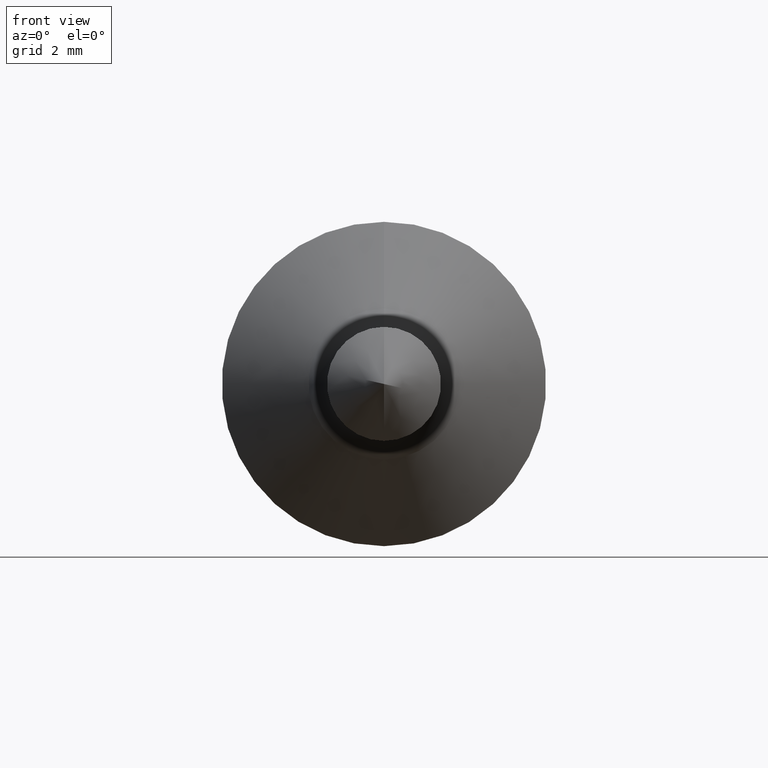
[diagram: clean part render]
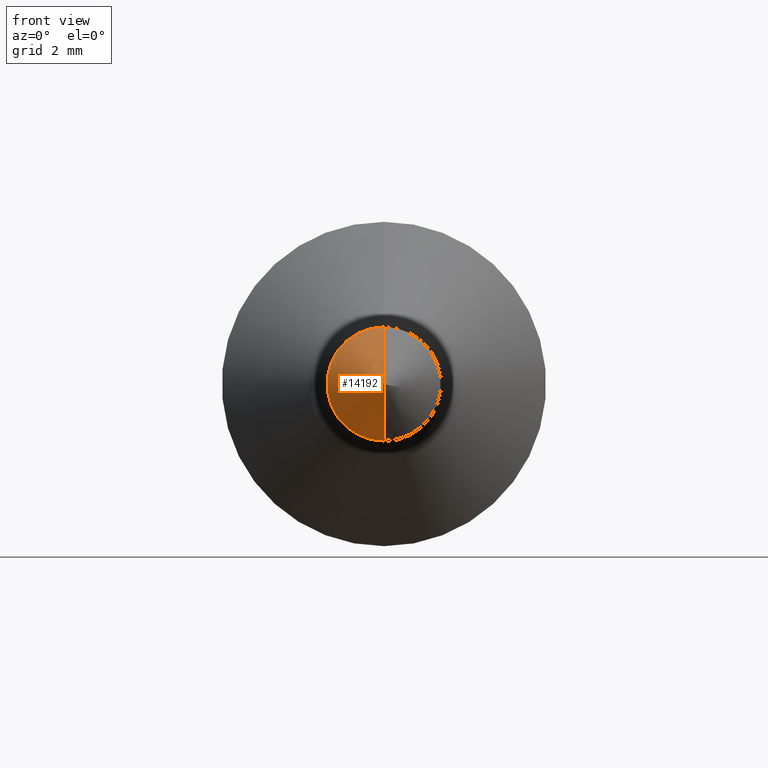
[diagram: same view with one face highlighted and labeled with its STEP entity id]
A machine part, front view. The second image highlights one B-rep face of the part: STEP entity #14192.
In plain terms, the highlighted conical surface has half-angle 43.531 deg.
Its self-contained STEP definition (entity closure, byte-faithful):
#120 = CARTESIAN_POINT ( 'NONE',  ( 2.326828918379972844E-16, 2.000000000000000000, -1.900000000000001688 ) ) ;
#1034 = VERTEX_POINT ( 'NONE', #120 ) ;
#1284 = EDGE_LOOP ( 'NONE', ( #3829, #6479, #3590 ) ) ;
#1417 = LINE ( 'NONE', #12757, #15106 ) ;
#1760 = CARTESIAN_POINT ( 'NONE',  ( 0.000000000000000000, 0.000000000000000000, 0.000000000000000000 ) ) ;
#2485 = CARTESIAN_POINT ( 'NONE',  ( 0.000000000000000000, 0.000000000000000000, 0.000000000000000000 ) ) ;
#3590 = ORIENTED_EDGE ( 'NONE', *, *, #16693, .T. ) ;
#3829 = ORIENTED_EDGE ( 'NONE', *, *, #7705, .F. ) ;
#4520 = LINE ( 'NONE', #2485, #16525 ) ;
#4835 = DIRECTION ( 'NONE',  ( 0.000000000000000000, 0.7249994335944133228, 0.6887494619146934394 ) ) ;
#5098 = DIRECTION ( 'NONE',  ( 8.434748239482910320E-17, 0.7249994335944133228, -0.6887494619146934394 ) ) ;
#5124 = VERTEX_POINT ( 'NONE', #1760 ) ;
#5169 = FACE_OUTER_BOUND ( 'NONE', #1284, .T. ) ;
#5443 = CARTESIAN_POINT ( 'NONE',  ( 0.000000000000000000, 2.000000000000000000, 0.000000000000000000 ) ) ;
#5745 = CARTESIAN_POINT ( 'NONE',  ( 0.000000000000000000, 1000.000000000000000, 0.000000000000000000 ) ) ;
#6479 = ORIENTED_EDGE ( 'NONE', *, *, #17180, .T. ) ;
#7705 = EDGE_CURVE ( 'NONE', #5124, #1034, #4520, .T. ) ;
#8473 = CIRCLE ( 'NONE', #12307, 1.900000000000001910 ) ;
#11123 = DIRECTION ( 'NONE',  ( 0.000000000000000000, 1.000000000000000000, 0.000000000000000000 ) ) ;
#12035 = DIRECTION ( 'NONE',  ( 0.000000000000000000, 0.000000000000000000, -1.000000000000000000 ) ) ;
#12262 = CARTESIAN_POINT ( 'NONE',  ( 0.000000000000000000, 2.000000000000000000, 1.900000000000001688 ) ) ;
#12307 = AXIS2_PLACEMENT_3D ( 'NONE', #5443, #15868, #12035 ) ;
#12757 = CARTESIAN_POINT ( 'NONE',  ( 0.000000000000000000, 0.000000000000000000, 0.000000000000000000 ) ) ;
#13227 = VERTEX_POINT ( 'NONE', #12262 ) ;
#13558 = DIRECTION ( 'NONE',  ( 0.000000000000000000, 0.000000000000000000, 1.000000000000000000 ) ) ;
#14192 = ADVANCED_FACE ( 'NONE', ( #5169 ), #16973, .T. ) ;
#15106 = VECTOR ( 'NONE', #4835, 1000.000000000000114 ) ;
#15868 = DIRECTION ( 'NONE',  ( -0.000000000000000000, -1.000000000000000000, -0.000000000000000000 ) ) ;
#16445 = AXIS2_PLACEMENT_3D ( 'NONE', #5745, #11123, #13558 ) ;
#16525 = VECTOR ( 'NONE', #5098, 1000.000000000000114 ) ;
#16693 = EDGE_CURVE ( 'NONE', #13227, #1034, #8473, .T. ) ;
#16973 = CONICAL_SURFACE ( 'NONE', #16445, 950.0000000000009095, 0.7597627548757712734 ) ;
#17180 = EDGE_CURVE ( 'NONE', #5124, #13227, #1417, .T. ) ;